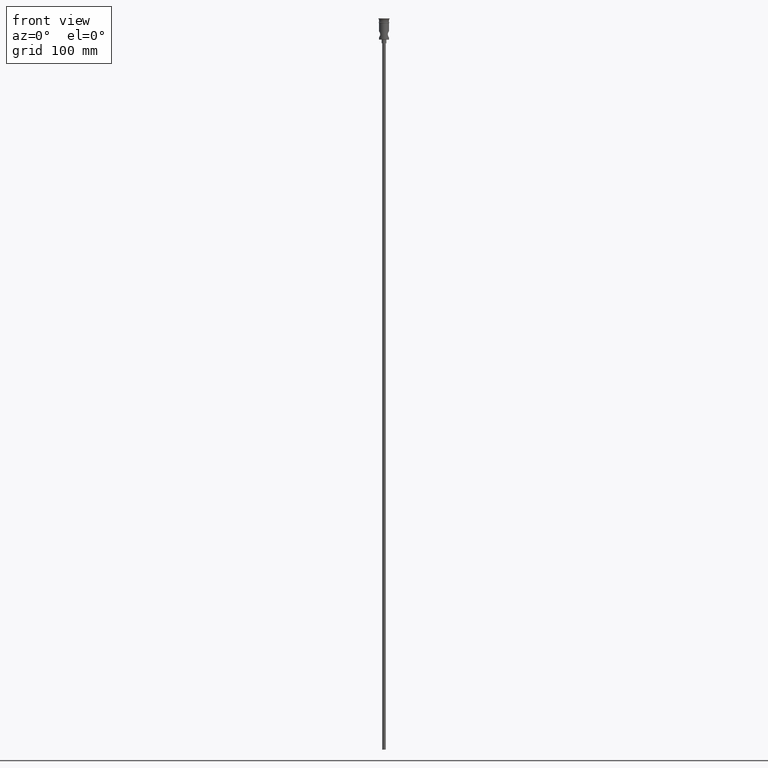
[diagram: clean part render]
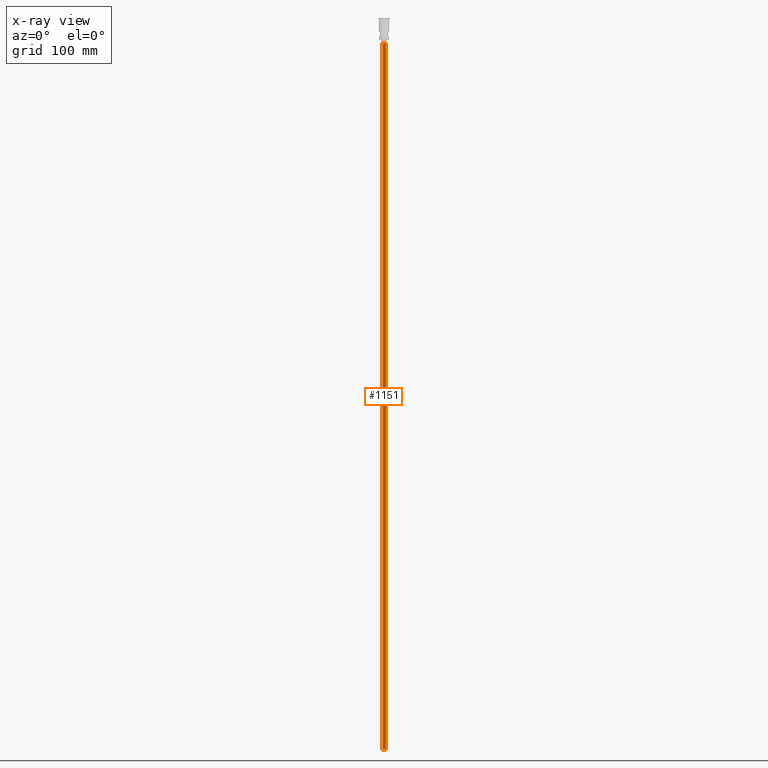
[diagram: x-ray — body ghosted, one internal face saturated and labeled with its STEP entity id]
A machine part, front view, then the same camera in x-ray: the body is ghosted and one INTERNAL B-rep face — a face not visible from any outside direction — is saturated and labeled: STEP entity #1151.
In plain terms, the highlighted cylindrical surface (edge-blend (fillet) strip) has radius 1.5 mm, axis along (-0, -0, 1).
Its self-contained STEP definition (entity closure, byte-faithful):
#42 = EDGE_LOOP ( 'NONE', ( #103, #1140, #323, #779 ) ) ;
#56 = CARTESIAN_POINT ( 'NONE',  ( -1.500000000000000222, 1.836970198721030181E-16, -618.0000000000000000 ) ) ;
#103 = ORIENTED_EDGE ( 'NONE', *, *, #555, .F. ) ;
#128 = LINE ( 'NONE', #516, #823 ) ;
#133 = EDGE_CURVE ( 'NONE', #922, #1148, #246, .T. ) ;
#209 = CYLINDRICAL_SURFACE ( 'NONE', #270, 1.500000000000000222 ) ;
#211 = DIRECTION ( 'NONE',  ( -1.000000000000000000, 0.000000000000000000, 0.000000000000000000 ) ) ;
#214 = DIRECTION ( 'NONE',  ( -0.000000000000000000, -0.000000000000000000, 1.000000000000000000 ) ) ;
#246 = CIRCLE ( 'NONE', #1046, 1.500000000000000222 ) ;
#270 = AXIS2_PLACEMENT_3D ( 'NONE', #1413, #214, #426 ) ;
#302 = DIRECTION ( 'NONE',  ( -0.000000000000000000, -0.000000000000000000, 1.000000000000000000 ) ) ;
#310 = CARTESIAN_POINT ( 'NONE',  ( 1.500000000000000222, 0.000000000000000000, -618.0000000000000000 ) ) ;
#323 = ORIENTED_EDGE ( 'NONE', *, *, #133, .T. ) ;
#423 = CARTESIAN_POINT ( 'NONE',  ( -1.500000000000000222, 1.836970198721030181E-16, -20.99999999999999645 ) ) ;
#426 = DIRECTION ( 'NONE',  ( 1.000000000000000000, 0.000000000000000000, 0.000000000000000000 ) ) ;
#516 = CARTESIAN_POINT ( 'NONE',  ( -1.500000000000000222, 1.836970198721030181E-16, -618.0000000000000000 ) ) ;
#543 = CARTESIAN_POINT ( 'NONE',  ( 0.000000000000000000, 0.000000000000000000, -618.0000000000000000 ) ) ;
#555 = EDGE_CURVE ( 'NONE', #1017, #557, #1365, .T. ) ;
#557 = VERTEX_POINT ( 'NONE', #1416 ) ;
#600 = EDGE_CURVE ( 'NONE', #557, #1148, #648, .T. ) ;
#648 = LINE ( 'NONE', #310, #1417 ) ;
#779 = ORIENTED_EDGE ( 'NONE', *, *, #600, .F. ) ;
#783 = CARTESIAN_POINT ( 'NONE',  ( 0.000000000000000000, 0.000000000000000000, -20.99999999999999645 ) ) ;
#823 = VECTOR ( 'NONE', #302, 1000.000000000000000 ) ;
#922 = VERTEX_POINT ( 'NONE', #423 ) ;
#953 = FACE_OUTER_BOUND ( 'NONE', #42, .T. ) ;
#959 = AXIS2_PLACEMENT_3D ( 'NONE', #543, #1280, #211 ) ;
#1017 = VERTEX_POINT ( 'NONE', #56 ) ;
#1046 = AXIS2_PLACEMENT_3D ( 'NONE', #783, #1326, #1219 ) ;
#1074 = DIRECTION ( 'NONE',  ( -0.000000000000000000, -0.000000000000000000, 1.000000000000000000 ) ) ;
#1140 = ORIENTED_EDGE ( 'NONE', *, *, #1398, .T. ) ;
#1148 = VERTEX_POINT ( 'NONE', #1388 ) ;
#1151 = ADVANCED_FACE ( 'NONE', ( #953 ), #209, .T. ) ;
#1219 = DIRECTION ( 'NONE',  ( -1.000000000000000000, 0.000000000000000000, 0.000000000000000000 ) ) ;
#1280 = DIRECTION ( 'NONE',  ( 0.000000000000000000, 0.000000000000000000, -1.000000000000000000 ) ) ;
#1326 = DIRECTION ( 'NONE',  ( 0.000000000000000000, 0.000000000000000000, -1.000000000000000000 ) ) ;
#1365 = CIRCLE ( 'NONE', #959, 1.500000000000000222 ) ;
#1388 = CARTESIAN_POINT ( 'NONE',  ( 1.500000000000000222, 0.000000000000000000, -20.99999999999999645 ) ) ;
#1398 = EDGE_CURVE ( 'NONE', #1017, #922, #128, .T. ) ;
#1413 = CARTESIAN_POINT ( 'NONE',  ( 0.000000000000000000, 0.000000000000000000, -618.0000000000000000 ) ) ;
#1416 = CARTESIAN_POINT ( 'NONE',  ( 1.500000000000000222, 0.000000000000000000, -618.0000000000000000 ) ) ;
#1417 = VECTOR ( 'NONE', #1074, 1000.000000000000000 ) ;